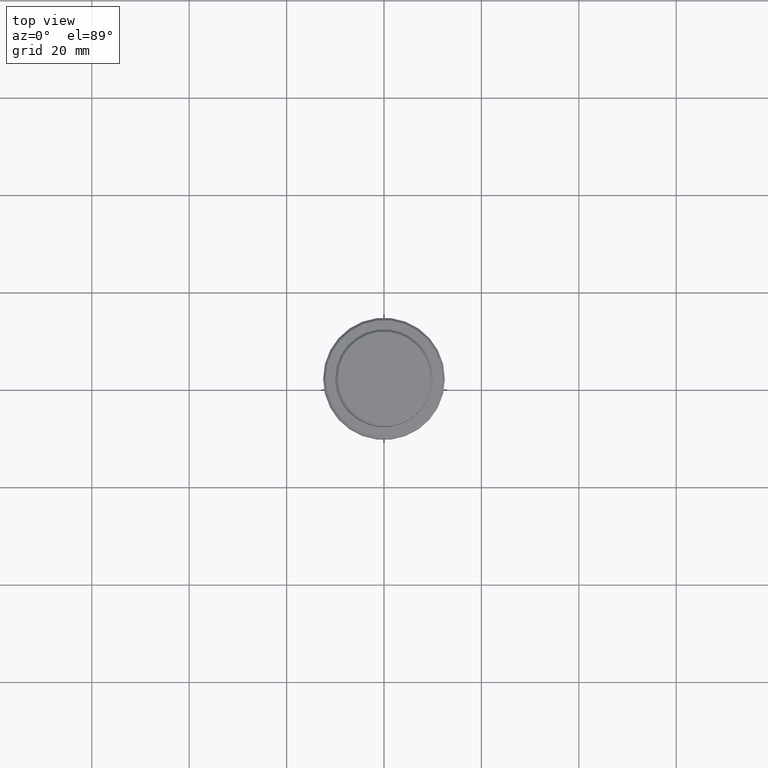
[diagram: clean part render]
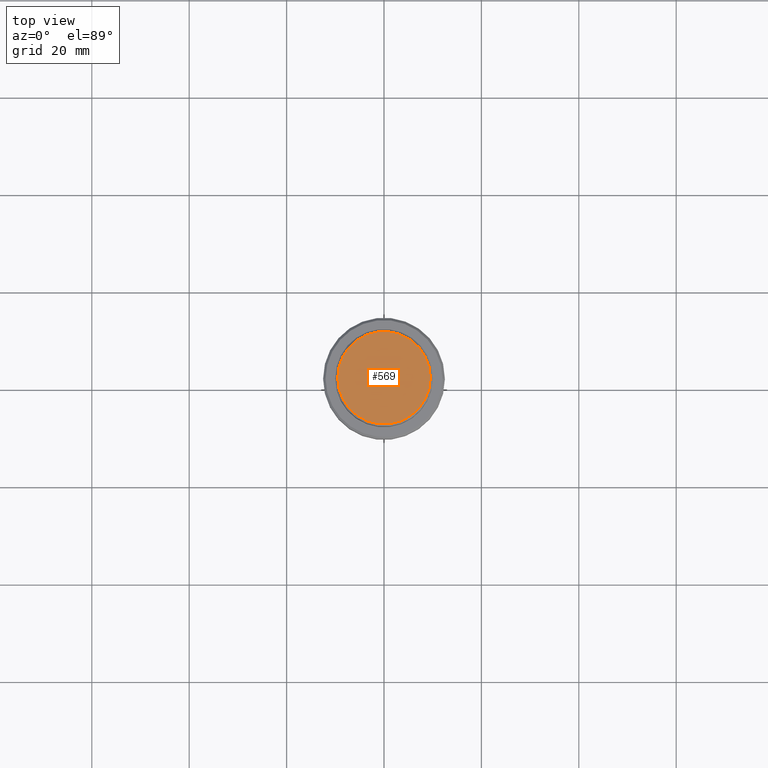
[diagram: same view with one face highlighted and labeled with its STEP entity id]
A machine part, top view. The second image highlights one B-rep face of the part: STEP entity #569.
In plain terms, the highlighted planar face has unit normal (0, -0, 1).
Its self-contained STEP definition (entity closure, byte-faithful):
#76 = FACE_OUTER_BOUND ( 'NONE', #1299, .T. ) ;
#92 = AXIS2_PLACEMENT_3D ( 'NONE', #402, #293, #725 ) ;
#145 = CIRCLE ( 'NONE', #992, 9.500000000000008882 ) ;
#190 = PLANE ( 'NONE',  #92 ) ;
#276 = VERTEX_POINT ( 'NONE', #808 ) ;
#293 = DIRECTION ( 'NONE',  ( 0.000000000000000000, -0.000000000000000000, 1.000000000000000000 ) ) ;
#374 = EDGE_CURVE ( 'NONE', #817, #276, #1290, .T. ) ;
#402 = CARTESIAN_POINT ( 'NONE',  ( 0.000000000000000000, 0.000000000000000000, 0.000000000000000000 ) ) ;
#432 = CARTESIAN_POINT ( 'NONE',  ( 0.000000000000000000, 0.000000000000000000, 0.000000000000000000 ) ) ;
#433 = DIRECTION ( 'NONE',  ( 1.000000000000000000, 0.000000000000000000, 0.000000000000000000 ) ) ;
#569 = ADVANCED_FACE ( 'NONE', ( #76 ), #190, .T. ) ;
#646 = DIRECTION ( 'NONE',  ( -0.000000000000000000, -0.000000000000000000, 1.000000000000000000 ) ) ;
#725 = DIRECTION ( 'NONE',  ( 1.000000000000000000, 0.000000000000000000, 0.000000000000000000 ) ) ;
#802 = AXIS2_PLACEMENT_3D ( 'NONE', #432, #646, #1098 ) ;
#808 = CARTESIAN_POINT ( 'NONE',  ( -9.500000000000008882, 0.000000000000000000, 0.000000000000000000 ) ) ;
#817 = VERTEX_POINT ( 'NONE', #1060 ) ;
#992 = AXIS2_PLACEMENT_3D ( 'NONE', #1417, #1074, #433 ) ;
#1060 = CARTESIAN_POINT ( 'NONE',  ( 9.500000000000008882, 1.194030629168669864E-15, 0.000000000000000000 ) ) ;
#1074 = DIRECTION ( 'NONE',  ( -0.000000000000000000, -0.000000000000000000, 1.000000000000000000 ) ) ;
#1098 = DIRECTION ( 'NONE',  ( 1.000000000000000000, 0.000000000000000000, 0.000000000000000000 ) ) ;
#1102 = EDGE_CURVE ( 'NONE', #276, #817, #145, .T. ) ;
#1201 = ORIENTED_EDGE ( 'NONE', *, *, #374, .T. ) ;
#1290 = CIRCLE ( 'NONE', #802, 9.500000000000008882 ) ;
#1299 = EDGE_LOOP ( 'NONE', ( #1302, #1201 ) ) ;
#1302 = ORIENTED_EDGE ( 'NONE', *, *, #1102, .T. ) ;
#1417 = CARTESIAN_POINT ( 'NONE',  ( 0.000000000000000000, 0.000000000000000000, 0.000000000000000000 ) ) ;